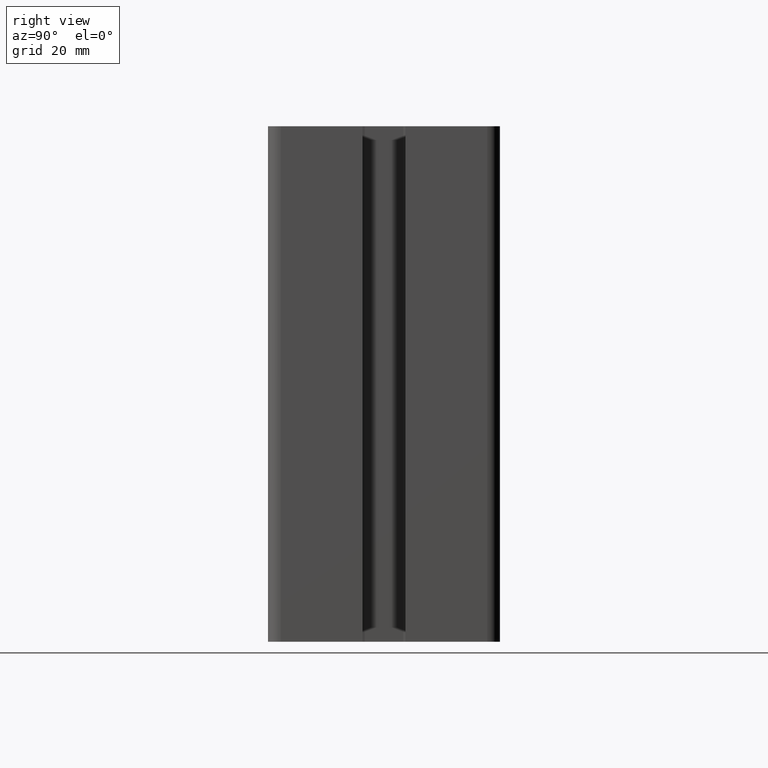
[diagram: clean part render]
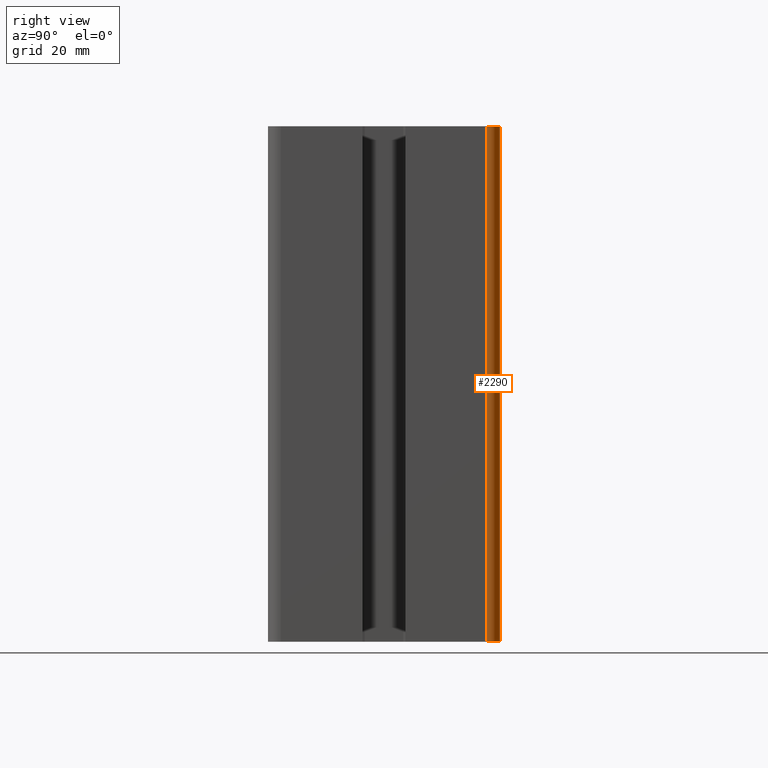
[diagram: same view with one face highlighted and labeled with its STEP entity id]
A machine part, right view. The second image highlights one B-rep face of the part: STEP entity #2290.
In plain terms, the highlighted cylindrical surface (edge-blend (fillet) strip) has radius 2.5 mm, axis along (0, 0, 1).
Its self-contained STEP definition (entity closure, byte-faithful):
#204=FACE_OUTER_BOUND('',#326,.T.);
#326=EDGE_LOOP('',(#2009,#2010,#2011,#2012));
#565=LINE('',#3837,#799);
#567=LINE('',#3841,#801);
#799=VECTOR('',#3161,100.);
#801=VECTOR('',#3165,100.);
#896=CIRCLE('',#2493,2.5);
#902=CIRCLE('',#2506,2.5);
#1117=VERTEX_POINT('',#3807);
#1118=VERTEX_POINT('',#3809);
#1125=VERTEX_POINT('',#3836);
#1126=VERTEX_POINT('',#3840);
#1442=EDGE_CURVE('',#1118,#1117,#896,.T.);
#1456=EDGE_CURVE('',#1125,#1118,#565,.T.);
#1458=EDGE_CURVE('',#1126,#1117,#567,.T.);
#1459=EDGE_CURVE('',#1125,#1126,#902,.T.);
#2009=ORIENTED_EDGE('',*,*,#1442,.T.);
#2010=ORIENTED_EDGE('',*,*,#1458,.F.);
#2011=ORIENTED_EDGE('',*,*,#1459,.F.);
#2012=ORIENTED_EDGE('',*,*,#1456,.T.);
#2178=CYLINDRICAL_SURFACE('',#2505,2.5);
#2290=ADVANCED_FACE('',(#204),#2178,.T.);
#2493=AXIS2_PLACEMENT_3D('',#3810,#3129,#3130);
#2505=AXIS2_PLACEMENT_3D('',#3839,#3163,#3164);
#2506=AXIS2_PLACEMENT_3D('',#3842,#3166,#3167);
#3129=DIRECTION('center_axis',(0.,0.,-1.));
#3130=DIRECTION('ref_axis',(1.,0.,0.));
#3161=DIRECTION('',(0.,0.,1.));
#3163=DIRECTION('center_axis',(0.,0.,1.));
#3164=DIRECTION('ref_axis',(1.,0.,0.));
#3165=DIRECTION('',(0.,0.,1.));
#3166=DIRECTION('center_axis',(0.,0.,-1.));
#3167=DIRECTION('ref_axis',(1.,0.,0.));
#3807=CARTESIAN_POINT('',(45.,20.,100.));
#3809=CARTESIAN_POINT('',(42.5,22.5,100.));
#3810=CARTESIAN_POINT('Origin',(42.5,20.,100.));
#3836=CARTESIAN_POINT('',(42.5,22.5,0.));
#3837=CARTESIAN_POINT('',(42.5,22.5,0.));
#3839=CARTESIAN_POINT('Origin',(42.5,20.,0.));
#3840=CARTESIAN_POINT('',(45.,20.,0.));
#3841=CARTESIAN_POINT('',(45.,20.,0.));
#3842=CARTESIAN_POINT('Origin',(42.5,20.,0.));